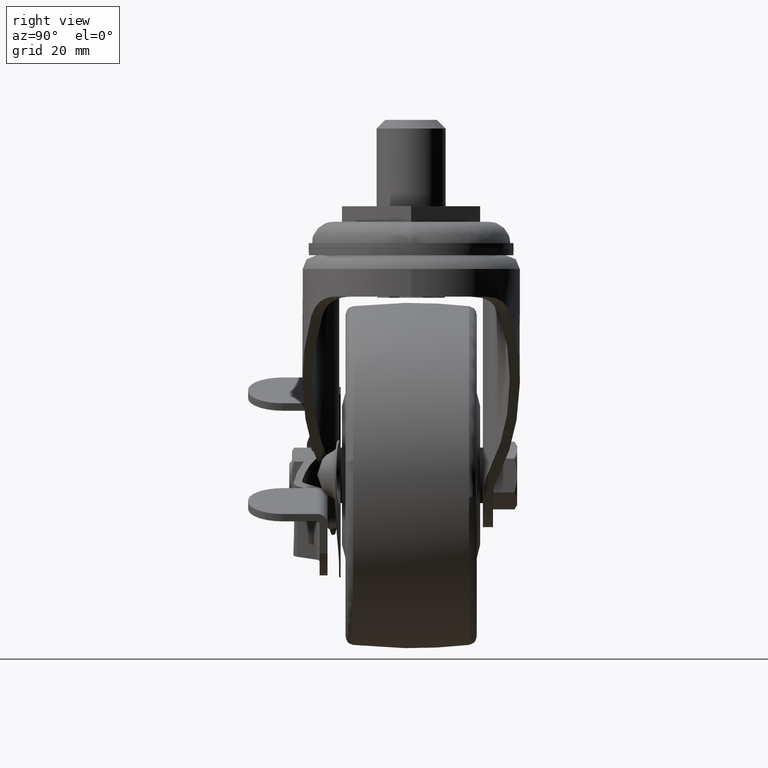
[diagram: clean part render]
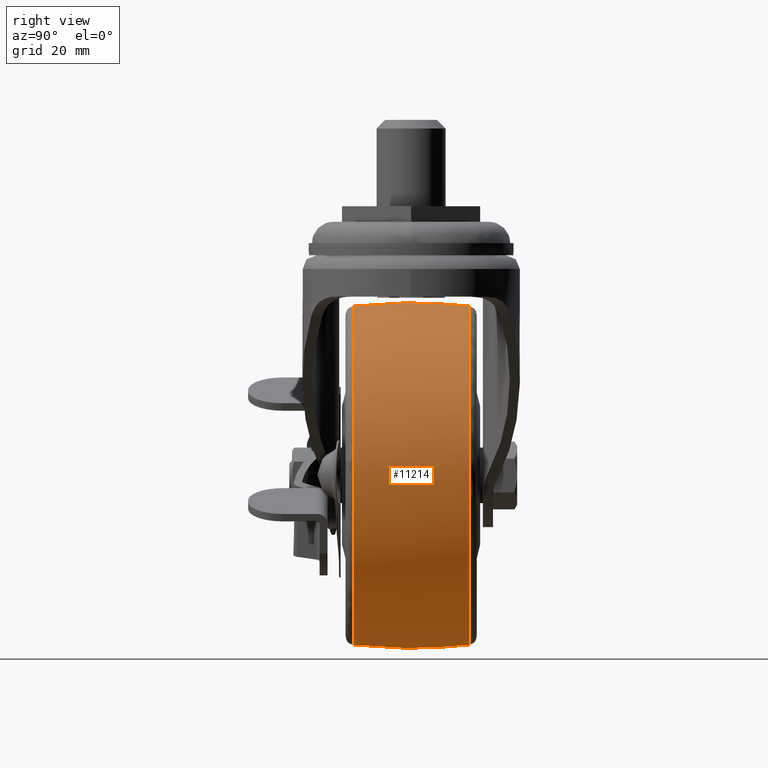
[diagram: same view with one face highlighted and labeled with its STEP entity id]
A machine part, right view. The second image highlights one B-rep face of the part: STEP entity #11214.
In plain terms, the highlighted face is a freeform B-spline surface patch.
Its self-contained STEP definition (entity closure, byte-faithful):
#11018=CARTESIAN_POINT('',(-37.0,-16.779637920549199,-122.558524584321300));
#11019=VERTEX_POINT('',#11018);
#11033=CARTESIAN_POINT('',(11.868843852250681,-16.779638064501590,-69.190150028961128));
#11034=VERTEX_POINT('',#11033);
#11035=CARTESIAN_POINT('',(-37.0,-16.779637920549199,-122.558524584321300));
#11036=CARTESIAN_POINT('',(12.058522565242489,-16.779637986471752,-122.558524533090380));
#11037=CARTESIAN_POINT('',(12.058523199629720,-16.779638058434461,-73.499999892817712));
#11038=CARTESIAN_POINT('',(12.058523227549539,-16.779638061601588,-71.340901001123243));
#11039=CARTESIAN_POINT('',(11.868843852250683,-16.779638064501587,-69.190150028961128));
#11047=(BOUNDED_CURVE()B_SPLINE_CURVE(2,(#11035,#11036,#11037,#11038,#11039),.UNSPECIFIED.,.F.,.U.)B_SPLINE_CURVE_WITH_KNOTS((3,2,3),(0.0,0.250000000000000,0.265281544351792),.UNSPECIFIED.)CURVE()GEOMETRIC_REPRESENTATION_ITEM()RATIONAL_B_SPLINE_CURVE((1.0,0.707106781186547,1.0,0.982096557145452,0.966381852339157))REPRESENTATION_ITEM(''));
#11048=EDGE_CURVE('',#11019,#11034,#11047,.T.);
#11093=CARTESIAN_POINT('',(-37.0,-16.779637920490050,-24.441475415672009));
#11094=VERTEX_POINT('',#11093);
#11095=CARTESIAN_POINT('',(11.868843852250683,-16.779638064501587,-69.190150028961128));
#11096=CARTESIAN_POINT('',(7.922360370651632,-16.779637992482321,-24.441475359724024));
#11097=CARTESIAN_POINT('',(-37.0,-16.779637920490050,-24.441475415672009));
#11105=(BOUNDED_CURVE()B_SPLINE_CURVE(2,(#11095,#11096,#11097),.UNSPECIFIED.,.F.,.U.)B_SPLINE_CURVE_WITH_KNOTS((3,3),(0.265281544351792,0.500000000000000),.UNSPECIFIED.)CURVE()GEOMETRIC_REPRESENTATION_ITEM()RATIONAL_B_SPLINE_CURVE((0.966381852339157,0.725010224041095,1.0))REPRESENTATION_ITEM(''));
#11106=EDGE_CURVE('',#11034,#11094,#11105,.T.);
#11127=CARTESIAN_POINT('',(-37.000000000000007,-18.465704698484352,-122.359053302069500));
#11128=CARTESIAN_POINT('',(-37.0,-9.268100377648732,-123.500000000000000));
#11129=CARTESIAN_POINT('',(-37.0,-4.867810E-015,-123.500000000000000));
#11130=CARTESIAN_POINT('',(-37.000000000000014,9.268104124571597,-123.500000000000030));
#11131=CARTESIAN_POINT('',(-37.000000000000007,18.465712107046045,-122.359052383050180));
#11132=CARTESIAN_POINT('',(11.859053302069505,-18.465704698484348,-122.359053302069530));
#11133=CARTESIAN_POINT('',(12.999999999999988,-9.268100377648734,-123.500000000000000));
#11134=CARTESIAN_POINT('',(12.999999999999989,-4.867810E-015,-123.499999999999990));
#11135=CARTESIAN_POINT('',(12.999999999999988,9.268104124571599,-123.499999999999970));
#11136=CARTESIAN_POINT('',(11.859052383050221,18.465712107046055,-122.359052383050210));
#11137=CARTESIAN_POINT('',(11.859053302069510,-18.465704698484352,-73.500000000000000));
#11138=CARTESIAN_POINT('',(12.999999999999991,-9.268100377648732,-73.500000000000000));
#11139=CARTESIAN_POINT('',(12.999999999999989,-4.867810E-015,-73.500000000000000));
#11140=CARTESIAN_POINT('',(12.999999999999996,9.268104124571597,-73.500000000000000));
#11141=CARTESIAN_POINT('',(11.859052383050228,18.465712107046045,-73.500000000000000));
#11142=CARTESIAN_POINT('',(11.859053302069505,-18.465704698484348,-24.640946697930502));
#11143=CARTESIAN_POINT('',(12.999999999999988,-9.268100377648734,-23.500000000000018));
#11144=CARTESIAN_POINT('',(12.999999999999989,-4.867810E-015,-23.500000000000018));
#11145=CARTESIAN_POINT('',(12.999999999999988,9.268104124571599,-23.500000000000018));
#11146=CARTESIAN_POINT('',(11.859052383050221,18.465712107046055,-24.640947616949781));
#11147=CARTESIAN_POINT('',(-37.000000000000007,-18.465704698484352,-24.640946697930492));
#11148=CARTESIAN_POINT('',(-37.0,-9.268100377648732,-23.500000000000007));
#11149=CARTESIAN_POINT('',(-37.0,-4.867810E-015,-23.500000000000011));
#11150=CARTESIAN_POINT('',(-37.000000000000014,9.268104124571597,-23.500000000000007));
#11151=CARTESIAN_POINT('',(-37.000000000000007,18.465712107046045,-24.640947616949777));
#11159=(BOUNDED_SURFACE()B_SPLINE_SURFACE(2,2,((#11127,#11132,#11137,#11142,#11147),(#11128,#11133,#11138,#11143,#11148),(#11129,#11134,#11139,#11144,#11149),(#11130,#11135,#11140,#11145,#11150),(#11131,#11136,#11141,#11146,#11151)),.UNSPECIFIED.,.F.,.F.,.U.)B_SPLINE_SURFACE_WITH_KNOTS((3,2,3),(3,2,3),(0.0,18.709207696205858,37.418422857757200),(0.0,82.842712474618992,165.685424949238010),.UNSPECIFIED.)GEOMETRIC_REPRESENTATION_ITEM()RATIONAL_B_SPLINE_SURFACE(((0.977858070588099,0.691450072750839,0.977858070588099,0.691450072750839,0.977858070588099),(0.986984865199306,0.697903691110920,0.986984865199306,0.697903691110920,0.986984865199306),(1.0,0.707106781186548,1.0,0.707106781186548,1.0),(0.986984860006009,0.697903687438704,0.986984860006009,0.697903687438704,0.986984860006009),(0.977858063304555,0.691450067600595,0.977858063304555,0.691450067600595,0.977858063304555)))REPRESENTATION_ITEM('')SURFACE());
#11160=CARTESIAN_POINT('',(-37.0,16.779649867030152,-122.558523239497300));
#11161=VERTEX_POINT('',#11160);
#11162=CARTESIAN_POINT('',(-37.0,-16.779637920549199,-122.558524584321300));
#11163=CARTESIAN_POINT('',(-37.000000000000043,-12.776367559165900,-123.009180097572300));
#11164=CARTESIAN_POINT('',(-36.999999999999950,-1.586281364282039,-123.814258282421310));
#11165=CARTESIAN_POINT('',(-37.000000000000057,9.643407289933570,-123.362239167050400));
#11166=CARTESIAN_POINT('',(-37.0,16.779649867030152,-122.558523239497300));
#11167=B_SPLINE_CURVE_WITH_KNOTS('',3,(#11162,#11163,#11164,#11165,#11166),.UNSPECIFIED.,.F.,.U.,(4,1,4),(-2.801762E-009,12.085685451898700,33.629693436592888),.UNSPECIFIED.);
#11168=EDGE_CURVE('',#11019,#11161,#11167,.T.);
#11169=ORIENTED_EDGE('',*,*,#11168,.T.);
#11170=CARTESIAN_POINT('',(11.671681510102680,16.779649936104459,-79.648663273134247));
#11171=VERTEX_POINT('',#11170);
#11172=CARTESIAN_POINT('',(-37.0,16.779649867030152,-122.558523239497300));
#11173=CARTESIAN_POINT('',(6.250905536471163,16.779649901573578,-122.558523277719620));
#11174=CARTESIAN_POINT('',(11.671681510102680,16.779649936104459,-79.648663273134247));
#11182=(BOUNDED_CURVE()B_SPLINE_CURVE(2,(#11172,#11173,#11174),.UNSPECIFIED.,.F.,.U.)B_SPLINE_CURVE_WITH_KNOTS((3,3),(0.0,0.228321257017717),.UNSPECIFIED.)CURVE()GEOMETRIC_REPRESENTATION_ITEM()RATIONAL_B_SPLINE_CURVE((1.0,0.732505008434190,0.953608358630374))REPRESENTATION_ITEM(''));
#11183=EDGE_CURVE('',#11161,#11171,#11182,.T.);
#11184=ORIENTED_EDGE('',*,*,#11183,.T.);
#11185=CARTESIAN_POINT('',(-37.0,16.779649867001449,-24.441476760499491));
#11186=VERTEX_POINT('',#11185);
#11187=CARTESIAN_POINT('',(11.671681510102678,16.779649936104455,-79.648663273134247));
#11188=CARTESIAN_POINT('',(12.058522572680992,16.779649934187546,-76.586500661565125));
#11189=CARTESIAN_POINT('',(12.058522553645471,16.779649932013360,-73.500000071918265));
#11190=CARTESIAN_POINT('',(12.058522251084428,16.779649897455585,-24.441476794197023));
#11191=CARTESIAN_POINT('',(-37.0,16.779649867001449,-24.441476760499491));
#11199=(BOUNDED_CURVE()B_SPLINE_CURVE(2,(#11187,#11188,#11189,#11190,#11191),.UNSPECIFIED.,.F.,.U.)B_SPLINE_CURVE_WITH_KNOTS((3,2,3),(0.228321257017717,0.250000000000000,0.500000000000000),.UNSPECIFIED.)CURVE()GEOMETRIC_REPRESENTATION_ITEM()RATIONAL_B_SPLINE_CURVE((0.953608358630374,0.974601772752358,1.0,0.707106781186547,1.0))REPRESENTATION_ITEM(''));
#11200=EDGE_CURVE('',#11171,#11186,#11199,.T.);
#11201=ORIENTED_EDGE('',*,*,#11200,.T.);
#11202=CARTESIAN_POINT('',(-37.0,-16.779637920490050,-24.441475415672009));
#11203=CARTESIAN_POINT('',(-36.999999999999979,-11.035836471647450,-23.794740682324061));
#11204=CARTESIAN_POINT('',(-37.000000000000128,0.176256226108277,-23.185630177677631));
#11205=CARTESIAN_POINT('',(-37.0,11.383937440151660,-23.833968678960542));
#11206=CARTESIAN_POINT('',(-37.0,16.779649867001449,-24.441476760499491));
#11207=B_SPLINE_CURVE_WITH_KNOTS('',3,(#11202,#11203,#11204,#11205,#11206),.UNSPECIFIED.,.F.,.U.,(4,1,4),(-2.802167E-009,17.340285091781460,33.629693436504482),.UNSPECIFIED.);
#11208=EDGE_CURVE('',#11094,#11186,#11207,.T.);
#11209=ORIENTED_EDGE('',*,*,#11208,.F.);
#11210=ORIENTED_EDGE('',*,*,#11106,.F.);
#11211=ORIENTED_EDGE('',*,*,#11048,.F.);
#11212=EDGE_LOOP('',(#11169,#11184,#11201,#11209,#11210,#11211));
#11213=FACE_OUTER_BOUND('',#11212,.T.);
#11214=ADVANCED_FACE('',(#11213),#11159,.T.);